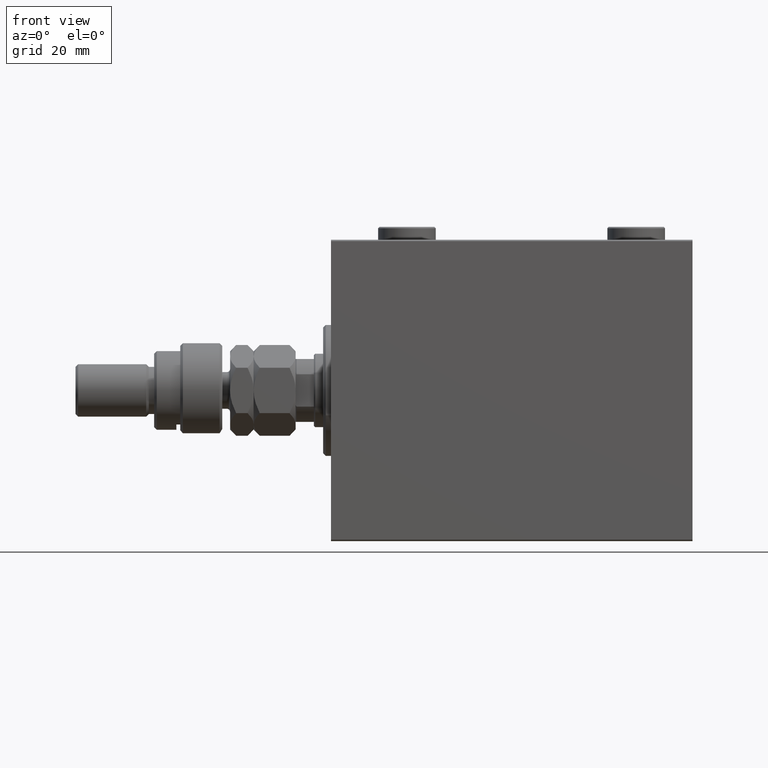
[diagram: clean part render]
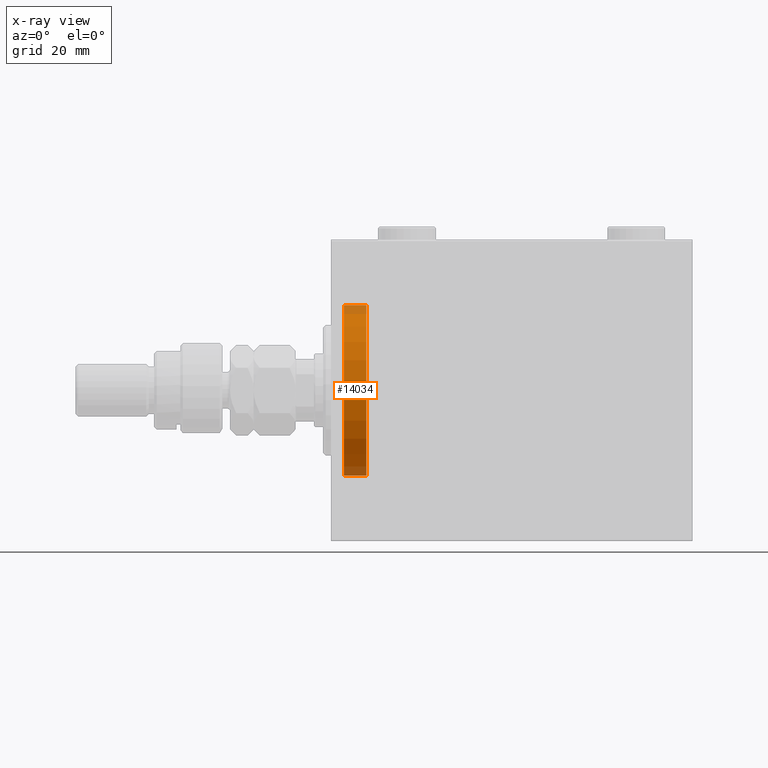
[diagram: x-ray — body ghosted, one internal face saturated and labeled with its STEP entity id]
A machine part, front view, then the same camera in x-ray: the body is ghosted and one INTERNAL B-rep face — a face not visible from any outside direction — is saturated and labeled: STEP entity #14034.
In plain terms, the highlighted cylindrical surface (partial cylindrical patch) has radius 32.5 mm, axis along (-1, -0, -0).
Its self-contained STEP definition (entity closure, byte-faithful):
#1341 = CARTESIAN_POINT ( 'NONE',  ( 13.50000000000000178, 3.980102097228898626E-15, -32.50000000000000000 ) ) ;
#1440 = CARTESIAN_POINT ( 'NONE',  ( 13.50000000000000178, 0.000000000000000000, 0.000000000000000000 ) ) ;
#2870 = DIRECTION ( 'NONE',  ( -1.000000000000000000, 0.000000000000000000, 0.000000000000000000 ) ) ;
#3413 = DIRECTION ( 'NONE',  ( 0.000000000000000000, 0.000000000000000000, 1.000000000000000000 ) ) ;
#3442 = VERTEX_POINT ( 'NONE', #34734 ) ;
#3880 = CARTESIAN_POINT ( 'NONE',  ( 13.50000000000000178, 0.000000000000000000, 0.000000000000000000 ) ) ;
#6206 = CARTESIAN_POINT ( 'NONE',  ( 5.000000000000000000, 3.980102097228898626E-15, -32.50000000000000000 ) ) ;
#7735 = VERTEX_POINT ( 'NONE', #6206 ) ;
#8757 = CYLINDRICAL_SURFACE ( 'NONE', #9565, 32.50000000000000000 ) ;
#9565 = AXIS2_PLACEMENT_3D ( 'NONE', #1440, #16778, #16295 ) ;
#11991 = VECTOR ( 'NONE', #18026, 1000.000000000000000 ) ;
#14034 = ADVANCED_FACE ( 'NONE', ( #16540 ), #8757, .F. ) ;
#16295 = DIRECTION ( 'NONE',  ( 0.000000000000000000, 0.000000000000000000, 1.000000000000000000 ) ) ;
#16540 = FACE_OUTER_BOUND ( 'NONE', #47976, .T. ) ;
#16575 = EDGE_CURVE ( 'NONE', #3442, #17337, #33130, .T. ) ;
#16778 = DIRECTION ( 'NONE',  ( -1.000000000000000000, -0.000000000000000000, -0.000000000000000000 ) ) ;
#17337 = VERTEX_POINT ( 'NONE', #47745 ) ;
#18026 = DIRECTION ( 'NONE',  ( -1.000000000000000000, -0.000000000000000000, -0.000000000000000000 ) ) ;
#18217 = VERTEX_POINT ( 'NONE', #1341 ) ;
#19030 = AXIS2_PLACEMENT_3D ( 'NONE', #3880, #40411, #3413 ) ;
#20959 = VECTOR ( 'NONE', #29604, 1000.000000000000000 ) ;
#22447 = EDGE_CURVE ( 'NONE', #18217, #3442, #40036, .T. ) ;
#23236 = ORIENTED_EDGE ( 'NONE', *, *, #41525, .T. ) ;
#25721 = LINE ( 'NONE', #47404, #20959 ) ;
#26842 = EDGE_CURVE ( 'NONE', #7735, #17337, #46271, .T. ) ;
#28184 = DIRECTION ( 'NONE',  ( 0.000000000000000000, 0.000000000000000000, 1.000000000000000000 ) ) ;
#29604 = DIRECTION ( 'NONE',  ( -1.000000000000000000, -0.000000000000000000, -0.000000000000000000 ) ) ;
#32185 = CARTESIAN_POINT ( 'NONE',  ( 13.50000000000000178, 0.000000000000000000, 32.50000000000000000 ) ) ;
#33130 = LINE ( 'NONE', #32185, #11991 ) ;
#34734 = CARTESIAN_POINT ( 'NONE',  ( 13.50000000000000178, 0.000000000000000000, 32.50000000000000000 ) ) ;
#34816 = ORIENTED_EDGE ( 'NONE', *, *, #26842, .T. ) ;
#40036 = CIRCLE ( 'NONE', #19030, 32.50000000000000000 ) ;
#40044 = AXIS2_PLACEMENT_3D ( 'NONE', #42580, #2870, #28184 ) ;
#40411 = DIRECTION ( 'NONE',  ( -1.000000000000000000, 0.000000000000000000, 0.000000000000000000 ) ) ;
#41525 = EDGE_CURVE ( 'NONE', #18217, #7735, #25721, .T. ) ;
#42580 = CARTESIAN_POINT ( 'NONE',  ( 5.000000000000000000, 0.000000000000000000, 0.000000000000000000 ) ) ;
#45476 = ORIENTED_EDGE ( 'NONE', *, *, #16575, .F. ) ;
#46271 = CIRCLE ( 'NONE', #40044, 32.50000000000000000 ) ;
#47217 = ORIENTED_EDGE ( 'NONE', *, *, #22447, .F. ) ;
#47404 = CARTESIAN_POINT ( 'NONE',  ( 13.50000000000000178, 3.980102097228898626E-15, -32.50000000000000000 ) ) ;
#47745 = CARTESIAN_POINT ( 'NONE',  ( 5.000000000000000000, 0.000000000000000000, 32.50000000000000000 ) ) ;
#47976 = EDGE_LOOP ( 'NONE', ( #47217, #23236, #34816, #45476 ) ) ;